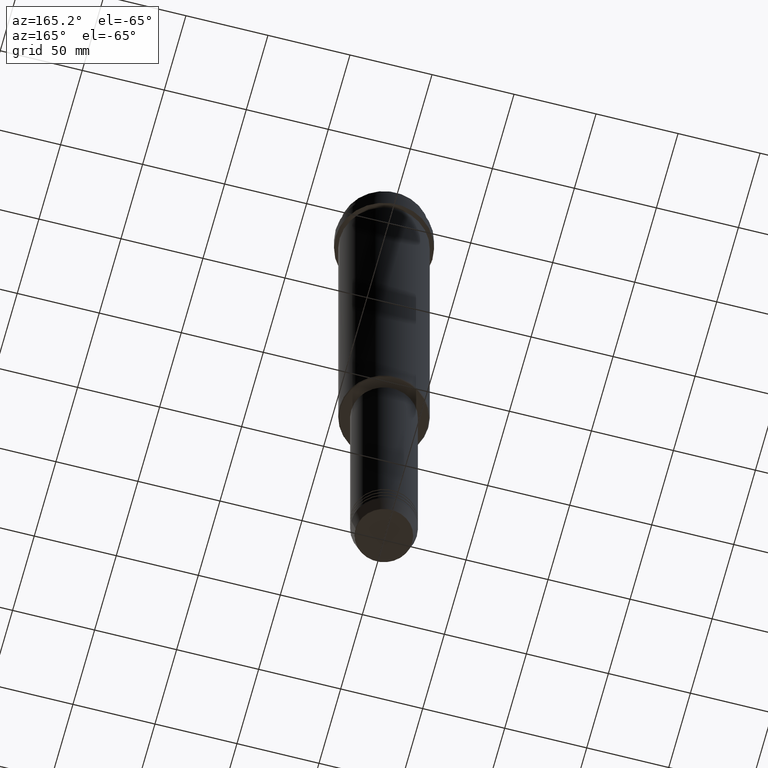
[diagram: clean part render]
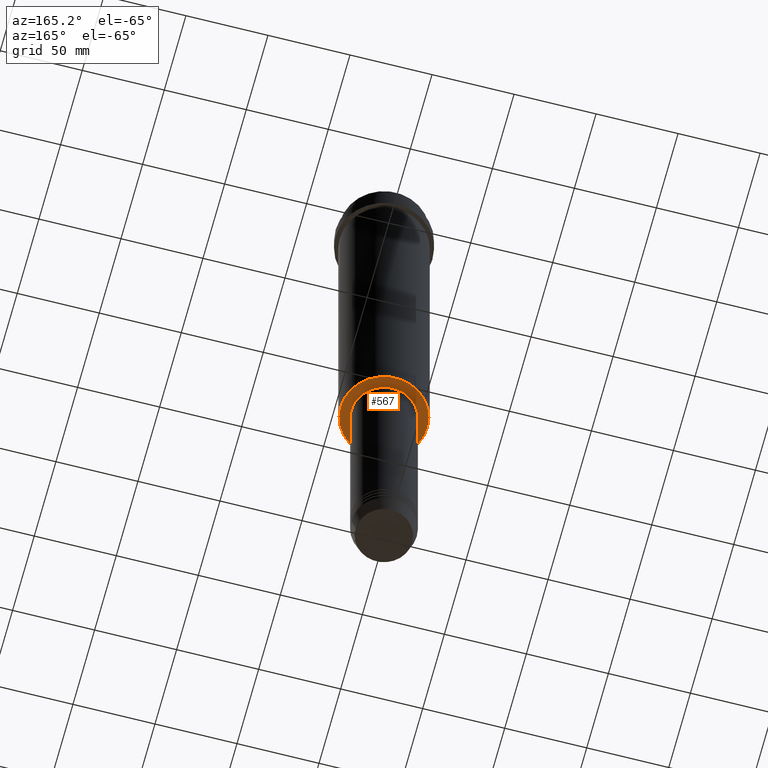
[diagram: same view with one face highlighted and labeled with its STEP entity id]
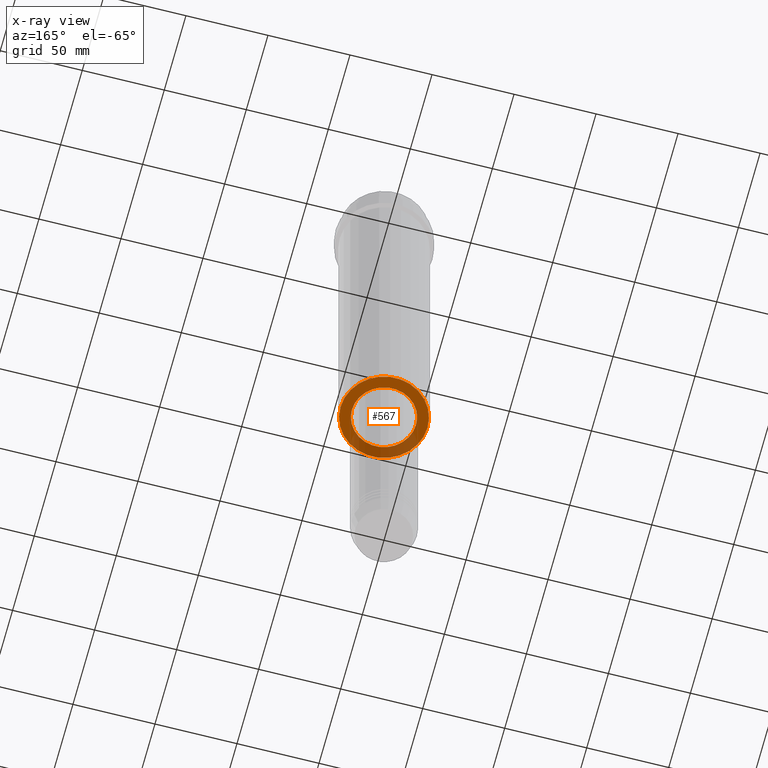
[diagram: x-ray of the same camera — body ghosted, the highlighted face saturated]
A machine part, auxiliary view. The second image highlights one B-rep face of the part: STEP entity #567.
The next image is the same camera in x-ray: the body ghosted, the highlighted face saturated — about 30% of this face is hidden behind the body in this view.
In plain terms, the highlighted planar face has unit normal (0, 0, -1).
Its self-contained STEP definition (entity closure, byte-faithful):
#75 = AXIS2_PLACEMENT_3D ( 'NONE', #171, #501, #1278 ) ;
#91 = CARTESIAN_POINT ( 'NONE',  ( 0.000000000000000000, 0.000000000000000000, -258.0000000000000000 ) ) ;
#97 = DIRECTION ( 'NONE',  ( -0.000000000000000000, -0.000000000000000000, 1.000000000000000000 ) ) ;
#129 = AXIS2_PLACEMENT_3D ( 'NONE', #1122, #246, #1213 ) ;
#155 = DIRECTION ( 'NONE',  ( 1.000000000000000000, 0.000000000000000000, 0.000000000000000000 ) ) ;
#171 = CARTESIAN_POINT ( 'NONE',  ( 0.000000000000000000, 0.000000000000000000, -258.0000000000000000 ) ) ;
#195 = CIRCLE ( 'NONE', #961, 19.49999999999999289 ) ;
#237 = EDGE_LOOP ( 'NONE', ( #1310, #1072 ) ) ;
#246 = DIRECTION ( 'NONE',  ( 0.000000000000000000, 0.000000000000000000, -1.000000000000000000 ) ) ;
#258 = CARTESIAN_POINT ( 'NONE',  ( 19.49999999999999289, 0.000000000000000000, -258.0000000000000000 ) ) ;
#302 = DIRECTION ( 'NONE',  ( -1.000000000000000000, 0.000000000000000000, 0.000000000000000000 ) ) ;
#304 = EDGE_CURVE ( 'NONE', #1324, #707, #988, .T. ) ;
#348 = EDGE_CURVE ( 'NONE', #1395, #663, #195, .T. ) ;
#415 = CARTESIAN_POINT ( 'NONE',  ( 0.000000000000000000, 0.000000000000000000, -258.0000000000000000 ) ) ;
#422 = AXIS2_PLACEMENT_3D ( 'NONE', #91, #746, #302 ) ;
#461 = EDGE_CURVE ( 'NONE', #707, #1324, #1132, .T. ) ;
#501 = DIRECTION ( 'NONE',  ( 0.000000000000000000, 0.000000000000000000, -1.000000000000000000 ) ) ;
#518 = ORIENTED_EDGE ( 'NONE', *, *, #304, .T. ) ;
#545 = EDGE_LOOP ( 'NONE', ( #827, #518 ) ) ;
#567 = ADVANCED_FACE ( 'NONE', ( #1328, #1117 ), #891, .T. ) ;
#641 = DIRECTION ( 'NONE',  ( 1.000000000000000000, 0.000000000000000000, 0.000000000000000000 ) ) ;
#663 = VERTEX_POINT ( 'NONE', #258 ) ;
#707 = VERTEX_POINT ( 'NONE', #802 ) ;
#746 = DIRECTION ( 'NONE',  ( 0.000000000000000000, 0.000000000000000000, -1.000000000000000000 ) ) ;
#802 = CARTESIAN_POINT ( 'NONE',  ( 26.50000000000007816, 0.000000000000000000, -258.0000000000000000 ) ) ;
#827 = ORIENTED_EDGE ( 'NONE', *, *, #461, .T. ) ;
#850 = EDGE_CURVE ( 'NONE', #663, #1395, #921, .T. ) ;
#891 = PLANE ( 'NONE',  #129 ) ;
#921 = CIRCLE ( 'NONE', #992, 19.49999999999999289 ) ;
#933 = DIRECTION ( 'NONE',  ( -0.000000000000000000, -0.000000000000000000, 1.000000000000000000 ) ) ;
#961 = AXIS2_PLACEMENT_3D ( 'NONE', #1243, #933, #155 ) ;
#988 = CIRCLE ( 'NONE', #75, 26.50000000000007816 ) ;
#992 = AXIS2_PLACEMENT_3D ( 'NONE', #415, #97, #641 ) ;
#1049 = CARTESIAN_POINT ( 'NONE',  ( -19.49999999999999289, 2.388061258337338150E-15, -258.0000000000000000 ) ) ;
#1057 = CARTESIAN_POINT ( 'NONE',  ( -26.50000000000007816, 3.275930187719175074E-15, -258.0000000000000000 ) ) ;
#1072 = ORIENTED_EDGE ( 'NONE', *, *, #348, .T. ) ;
#1117 = FACE_BOUND ( 'NONE', #237, .T. ) ;
#1122 = CARTESIAN_POINT ( 'NONE',  ( 0.000000000000000000, 27.00000000000000355, -258.0000000000000000 ) ) ;
#1132 = CIRCLE ( 'NONE', #422, 26.50000000000007816 ) ;
#1213 = DIRECTION ( 'NONE',  ( -1.000000000000000000, 0.000000000000000000, -0.000000000000000000 ) ) ;
#1243 = CARTESIAN_POINT ( 'NONE',  ( 0.000000000000000000, 0.000000000000000000, -258.0000000000000000 ) ) ;
#1278 = DIRECTION ( 'NONE',  ( -1.000000000000000000, 0.000000000000000000, 0.000000000000000000 ) ) ;
#1310 = ORIENTED_EDGE ( 'NONE', *, *, #850, .T. ) ;
#1324 = VERTEX_POINT ( 'NONE', #1057 ) ;
#1328 = FACE_OUTER_BOUND ( 'NONE', #545, .T. ) ;
#1395 = VERTEX_POINT ( 'NONE', #1049 ) ;